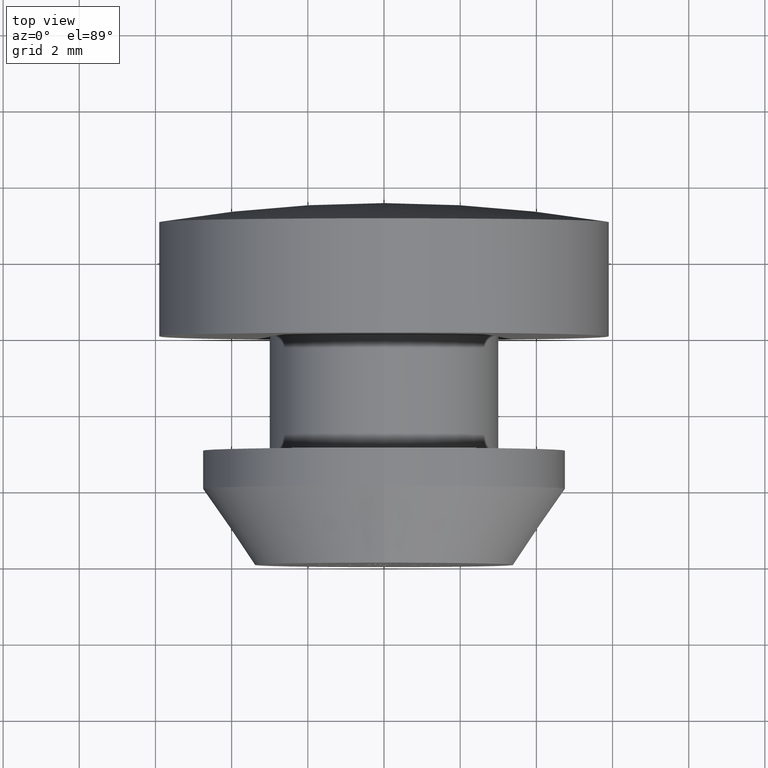
[diagram: clean part render]
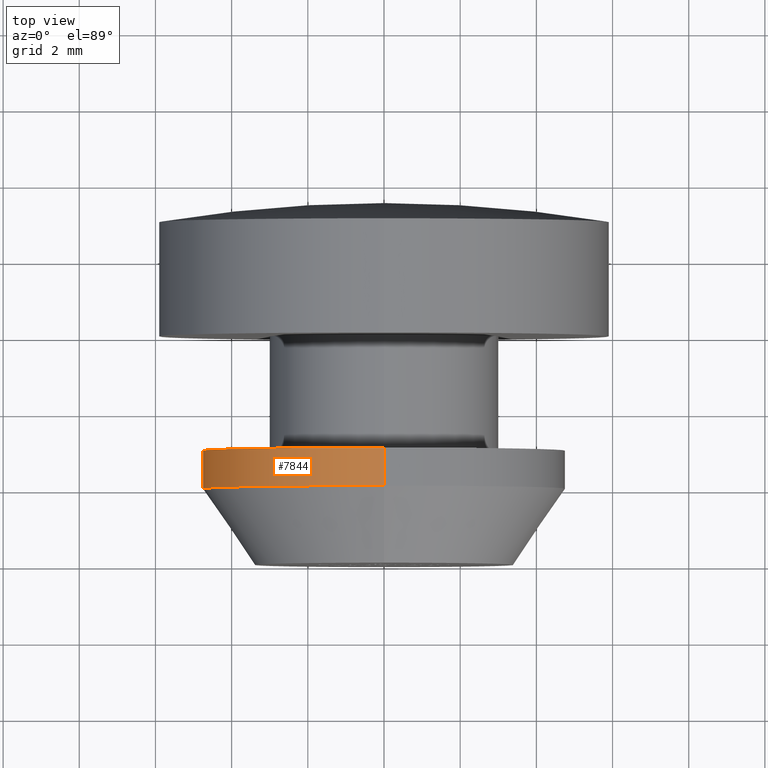
[diagram: same view with one face highlighted and labeled with its STEP entity id]
A machine part, top view. The second image highlights one B-rep face of the part: STEP entity #7844.
In plain terms, the highlighted cylindrical surface (partial cylindrical patch) has radius 4.75 mm, axis along (-0, -1, -0).
Its self-contained STEP definition (entity closure, byte-faithful):
#835 = CARTESIAN_POINT ( 'NONE',  ( 0.000000000000000000, 3.000000000000000000, 0.000000000000000000 ) ) ;
#1160 = CARTESIAN_POINT ( 'NONE',  ( 0.000000000000000000, 2.000000000000000000, -4.750000000000000888 ) ) ;
#1428 = VERTEX_POINT ( 'NONE', #13003 ) ;
#2319 = VECTOR ( 'NONE', #6725, 1000.000000000000000 ) ;
#2410 = EDGE_CURVE ( 'NONE', #12701, #15680, #14904, .T. ) ;
#2752 = CARTESIAN_POINT ( 'NONE',  ( 5.817072295949928412E-16, 0.000000000000000000, 4.750000000000000888 ) ) ;
#3368 = CIRCLE ( 'NONE', #14636, 4.750000000000000888 ) ;
#4290 = EDGE_LOOP ( 'NONE', ( #15406, #13791, #13099, #4835 ) ) ;
#4697 = CARTESIAN_POINT ( 'NONE',  ( 0.000000000000000000, 2.000000000000000000, 0.000000000000000000 ) ) ;
#4835 = ORIENTED_EDGE ( 'NONE', *, *, #13878, .F. ) ;
#5947 = LINE ( 'NONE', #2752, #13569 ) ;
#6354 = CARTESIAN_POINT ( 'NONE',  ( 0.000000000000000000, 3.000000000000000000, -4.750000000000000000 ) ) ;
#6725 = DIRECTION ( 'NONE',  ( -0.000000000000000000, -1.000000000000000000, -0.000000000000000000 ) ) ;
#7504 = EDGE_CURVE ( 'NONE', #1428, #7782, #5947, .T. ) ;
#7572 = AXIS2_PLACEMENT_3D ( 'NONE', #835, #15458, #9372 ) ;
#7782 = VERTEX_POINT ( 'NONE', #10383 ) ;
#7844 = ADVANCED_FACE ( 'NONE', ( #11875 ), #8603, .T. ) ;
#8050 = CARTESIAN_POINT ( 'NONE',  ( 0.000000000000000000, 0.000000000000000000, 0.000000000000000000 ) ) ;
#8603 = CYLINDRICAL_SURFACE ( 'NONE', #10097, 4.750000000000000888 ) ;
#9110 = CIRCLE ( 'NONE', #7572, 4.750000000000000000 ) ;
#9372 = DIRECTION ( 'NONE',  ( 0.000000000000000000, 0.000000000000000000, -1.000000000000000000 ) ) ;
#9673 = DIRECTION ( 'NONE',  ( -0.000000000000000000, -1.000000000000000000, -0.000000000000000000 ) ) ;
#10097 = AXIS2_PLACEMENT_3D ( 'NONE', #8050, #12914, #12858 ) ;
#10383 = CARTESIAN_POINT ( 'NONE',  ( 5.817072295949928412E-16, 2.000000000000000000, 4.750000000000000888 ) ) ;
#11597 = DIRECTION ( 'NONE',  ( -0.000000000000000000, -1.000000000000000000, -0.000000000000000000 ) ) ;
#11875 = FACE_OUTER_BOUND ( 'NONE', #4290, .T. ) ;
#12350 = EDGE_CURVE ( 'NONE', #1428, #12701, #9110, .T. ) ;
#12701 = VERTEX_POINT ( 'NONE', #6354 ) ;
#12760 = CARTESIAN_POINT ( 'NONE',  ( 0.000000000000000000, 0.000000000000000000, -4.750000000000000888 ) ) ;
#12858 = DIRECTION ( 'NONE',  ( 0.000000000000000000, 0.000000000000000000, -1.000000000000000000 ) ) ;
#12914 = DIRECTION ( 'NONE',  ( -0.000000000000000000, -1.000000000000000000, -0.000000000000000000 ) ) ;
#13003 = CARTESIAN_POINT ( 'NONE',  ( 5.817072295949927426E-16, 3.000000000000000000, 4.750000000000000000 ) ) ;
#13099 = ORIENTED_EDGE ( 'NONE', *, *, #2410, .T. ) ;
#13414 = DIRECTION ( 'NONE',  ( 0.000000000000000000, 0.000000000000000000, -1.000000000000000000 ) ) ;
#13569 = VECTOR ( 'NONE', #11597, 1000.000000000000000 ) ;
#13791 = ORIENTED_EDGE ( 'NONE', *, *, #12350, .T. ) ;
#13878 = EDGE_CURVE ( 'NONE', #7782, #15680, #3368, .T. ) ;
#14636 = AXIS2_PLACEMENT_3D ( 'NONE', #4697, #9673, #13414 ) ;
#14904 = LINE ( 'NONE', #12760, #2319 ) ;
#15406 = ORIENTED_EDGE ( 'NONE', *, *, #7504, .F. ) ;
#15458 = DIRECTION ( 'NONE',  ( -0.000000000000000000, -1.000000000000000000, -0.000000000000000000 ) ) ;
#15680 = VERTEX_POINT ( 'NONE', #1160 ) ;